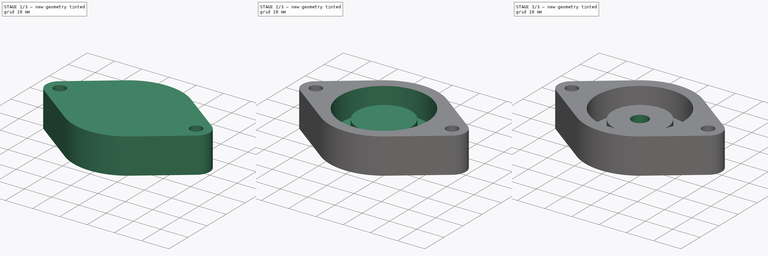
[diagram: build sequence overview — one tinted view per stage of 3, left to right]
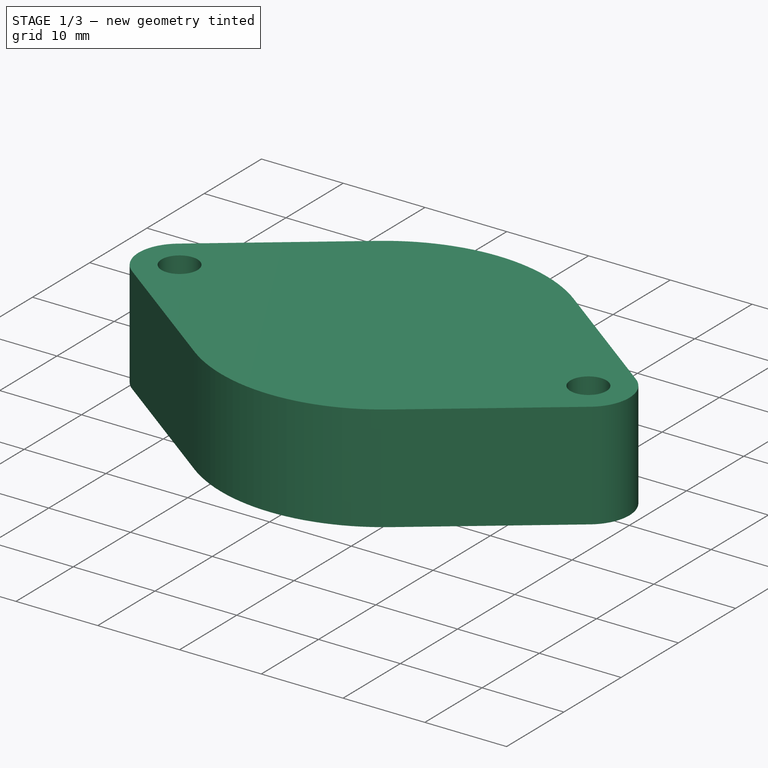
[diagram: stage 1 of 3 — iso view after this stage's code; geometry added in this stage tinted green]
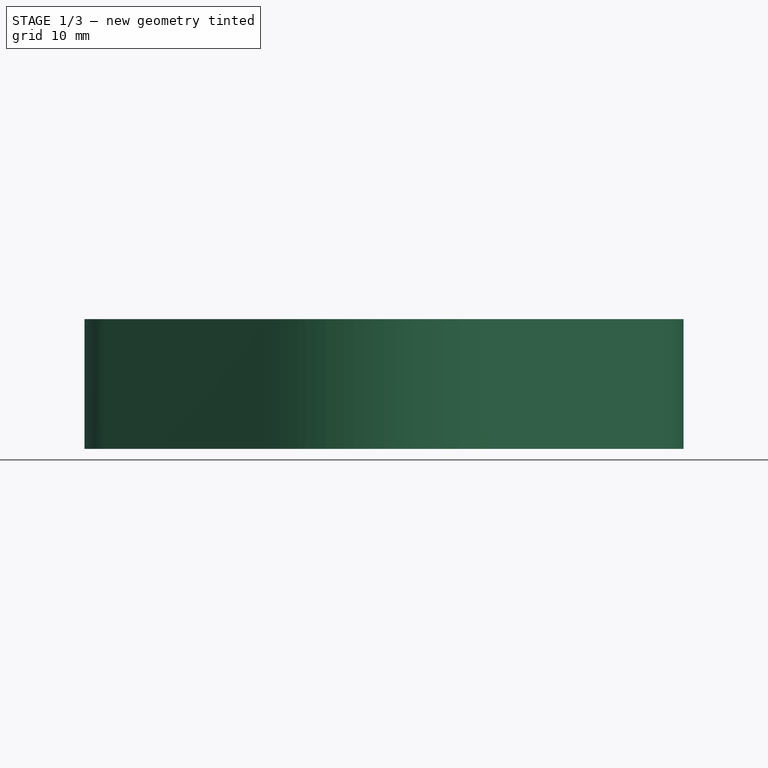
[diagram: stage 1 of 3 — front view after this stage's code; geometry added in this stage tinted green]
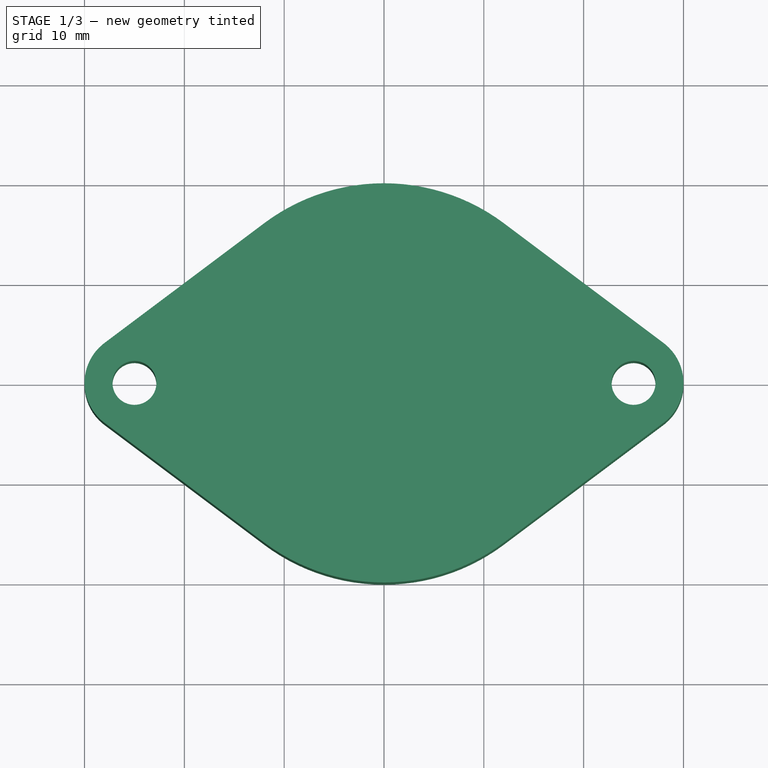
[diagram: stage 1 of 3 — top view after this stage's code; geometry added in this stage tinted green]
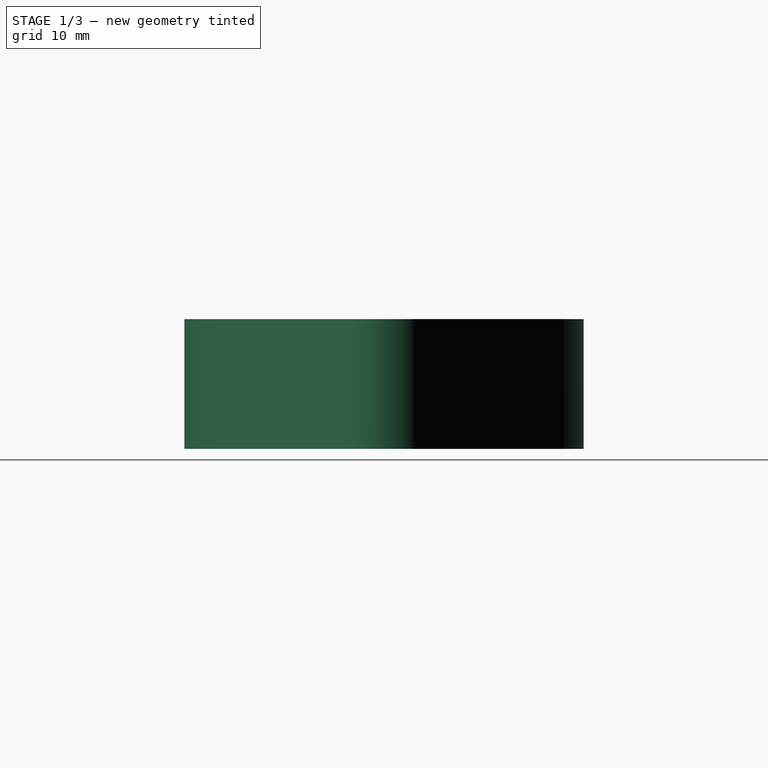
[diagram: stage 1 of 3 — right view after this stage's code; geometry added in this stage tinted green]
FCSTD DOCUMENT  (FreeCAD 0.16R5840 (Git))
Label: RubberFeetMount
License: CC-BY 3.0
LicenseURL: http://creativecommons.org/licenses/by/3.0/
objects: Sketcher::SketchObject×5, PartDesign::Pocket×3, PartDesign::Pad×2, App::DocumentObjectGroup×2, PartDesign::Chamfer×1
note: 16 computed .brp shape members not serialized (recipe doc carries the construction recipe); baked Part::Feature solids carry a one-line shape summary decoded from their .brp

FEATURE [Sketcher::SketchObject] Sketch  label="1_DrillAidBase_Sketch"
  sketch-geometry (10):
    g0: ArcOfCircle CenterX=-25 CenterY=0 CenterZ=0 NormalX=0 NormalY=0 NormalZ=1 Radius=5 StartAngle=2.2143 EndAngle=4.06889
    g1: ArcOfCircle CenterX=25 CenterY=0 CenterZ=0 NormalX=0 NormalY=0 NormalZ=1 Radius=5 StartAngle=5.35589 EndAngle=7.21048
    g2: ArcOfCircle CenterX=0 CenterY=0 CenterZ=0 NormalX=0 NormalY=0 NormalZ=1 Radius=20 StartAngle=0.927296 EndAngle=2.2143
    g3: ArcOfCircle CenterX=0 CenterY=0 CenterZ=0 NormalX=0 NormalY=0 NormalZ=1 Radius=20 StartAngle=4.06889 EndAngle=5.35589
    g4: LineSegment StartX=-28 StartY=4 StartZ=0 EndX=-12 EndY=16 EndZ=0
    g5: LineSegment StartX=-28 StartY=-4 StartZ=0 EndX=-12 EndY=-16 EndZ=0
    g6: LineSegment StartX=12 StartY=-16 StartZ=0 EndX=28 EndY=-4 EndZ=0
    g7: LineSegment StartX=12 StartY=16 StartZ=0 EndX=28 EndY=4 EndZ=0
    g8: Circle CenterX=-25 CenterY=0 CenterZ=0 NormalX=0 NormalY=0 NormalZ=1 Radius=2.2
    g9: Circle CenterX=25 CenterY=0 CenterZ=0 NormalX=0 NormalY=0 NormalZ=1 Radius=2.2
  constraints (30):
    c: PointOnObject(g0,g-1)
    c: PointOnObject(g1,g-1)
    c: Coincident(g2,g-1)
    c: Coincident(g3,g-1)
    c: Equal(g3,g2)
    c: Coincident(g4,g0)
    c: Coincident(g4,g2)
    c: Coincident(g5,g0)
    c: Coincident(g5,g3)
    c: Coincident(g6,g3)
    c: Coincident(g6,g1)
    c: Coincident(g7,g2)
    c: Coincident(g7,g1)
    c: Radius(g2) = 20
    c: Tangent(g4,g2)
    c: Tangent(g5,g3)
    c: Tangent(g3,g6)
    c: Tangent(g2,g7)
    c: Radius(g0) = 5
    c: Equal(g1,g0)
    c: DistanceX(g0,g1) = 50
    c: Tangent(g0,g4)
    c: Tangent(g0,g5)
    c: Tangent(g6,g1)
    c: Tangent(g7,g1)
    c: Symmetric(g2,g2,g-2)
    c: Coincident(g8,g0)
    c: Coincident(g9,g1)
    c: Radius(g9) = 2.2
    c: Equal(g9,g8)
FEATURE [PartDesign::Pad] Pad  label="1_DrillAidBase_Pad"
  Length = 13
  Length2 = 100
  Sketch = -> Sketch
  Type = 0
FEATURE [App::DocumentObjectGroup] Group001  label="DrillAid"
  Group = -> [Pad,Pocket,Pocket001,Chamfer,Pocket002]
FEATURE [Sketcher::SketchObject] Sketch004  label="1_FeetPadBase_Sketch"
  sketch-geometry (2):
    g0: Circle CenterX=0 CenterY=0 CenterZ=0 NormalX=0 NormalY=0 NormalZ=1 Radius=1.6
    g1: Circle CenterX=0 CenterY=0 CenterZ=0 NormalX=0 NormalY=0 NormalZ=1 Radius=16
  constraints (4):
    c: Coincident(g0,g-1)
    c: Coincident(g1,g-1)
    c: Radius(g0) = 1.6
    c: Radius(g1) = 16
FEATURE [PartDesign::Pad] Pad001  label="1_FeetPadBase_Pad"
  Length = 1
  Length2 = 100
  Sketch = -> Sketch004
  Type = 0
FEATURE [App::DocumentObjectGroup] Group002  label="Pad"
  Group = -> [Pad001]
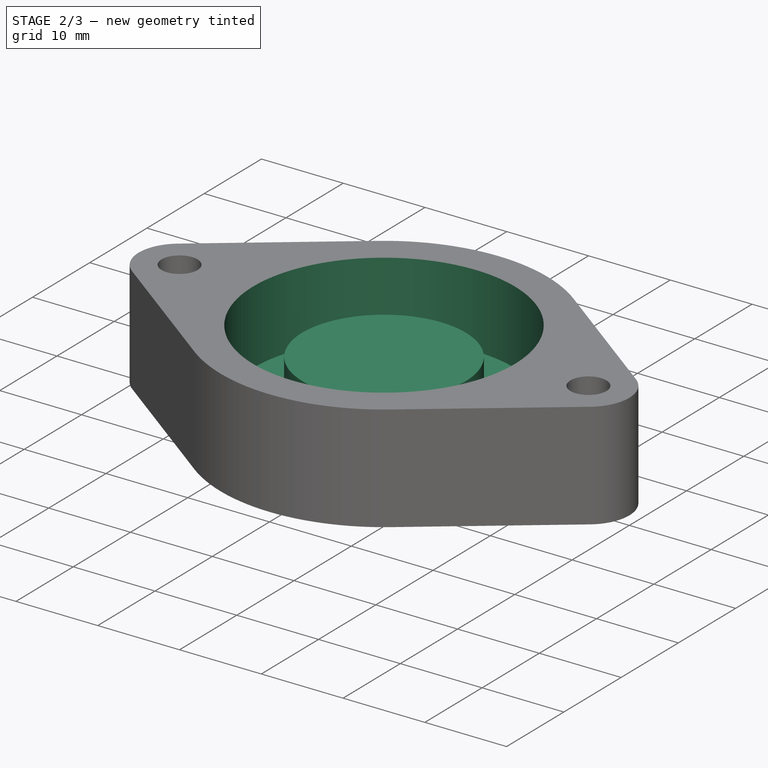
[diagram: stage 2 of 3 — iso view after this stage's code; geometry added in this stage tinted green]
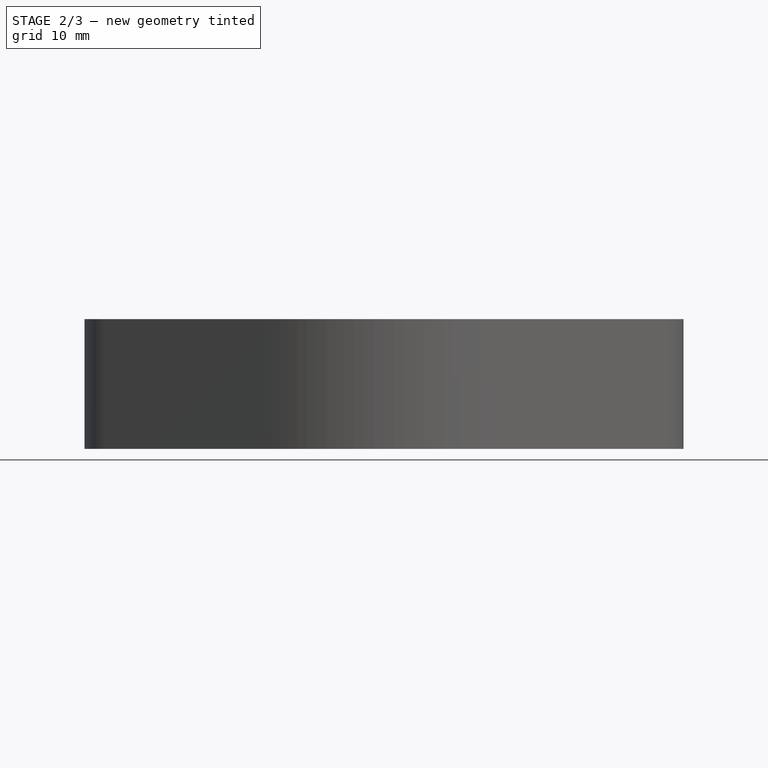
[diagram: stage 2 of 3 — front view after this stage's code; geometry added in this stage tinted green]
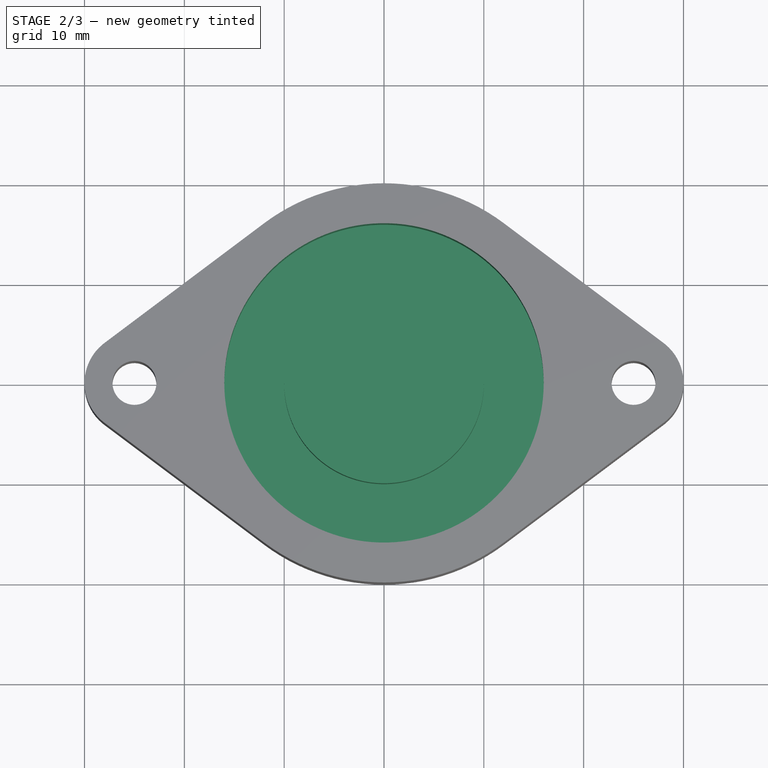
[diagram: stage 2 of 3 — top view after this stage's code; geometry added in this stage tinted green]
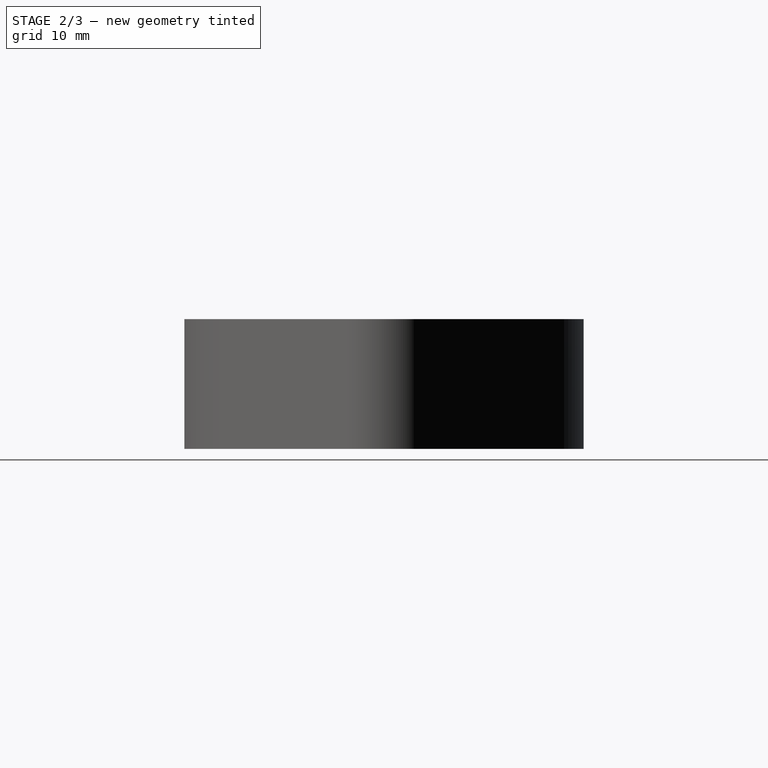
[diagram: stage 2 of 3 — right view after this stage's code; geometry added in this stage tinted green]
FEATURE [Sketcher::SketchObject] Sketch001  label="2_BodyHole_Sketch"
  Placement = pos=(0,0,13) rot=(0,0,1;0rad)
  Support = -> Pad [Face12]
  sketch-geometry (1):
    g0: Circle CenterX=0 CenterY=0 CenterZ=0 NormalX=0 NormalY=0 NormalZ=1 Radius=16
  constraints (2):
    c: Coincident(g0,g-1)
    c: Radius(g0) = 16
FEATURE [PartDesign::Pocket] Pocket  label="2_BodyHole_Pocket"
  Length = 3.5
  Sketch = -> Sketch001
  Type = 0
FEATURE [Sketcher::SketchObject] Sketch002  label="3_LipHole_Sketch"
  ExternalGeometry = -> [Pocket]
  Placement = pos=(0,0,9.5) rot=(0,0,1;0rad)
  Support = -> Pocket [Face14]
  sketch-geometry (2):
    g0: Circle CenterX=0 CenterY=0 CenterZ=0 NormalX=0 NormalY=0 NormalZ=1 Radius=16
    g1: Circle CenterX=0 CenterY=0 CenterZ=0 NormalX=0 NormalY=0 NormalZ=1 Radius=10
  constraints (4):
    c: Coincident(g0,g-1)
    c: Equal(g-3,g0)
    c: Coincident(g1,g-1)
    c: Radius(g1) = 10
FEATURE [PartDesign::Pocket] Pocket001  label="3_LipHole_Pocket"
  Length = 5.5
  Sketch = -> Sketch002
  Type = 0
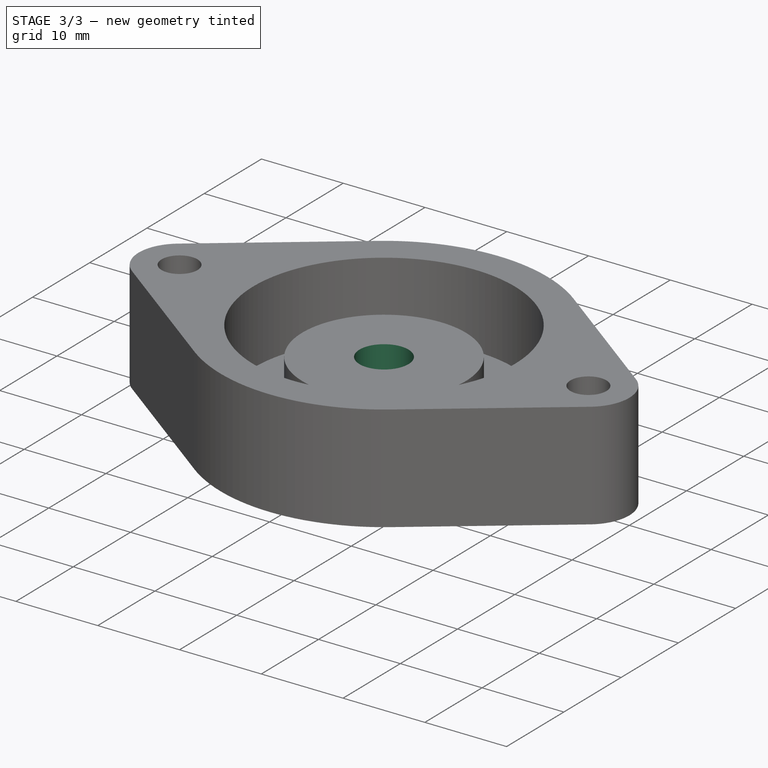
[diagram: stage 3 of 3 — iso view after this stage's code; geometry added in this stage tinted green]
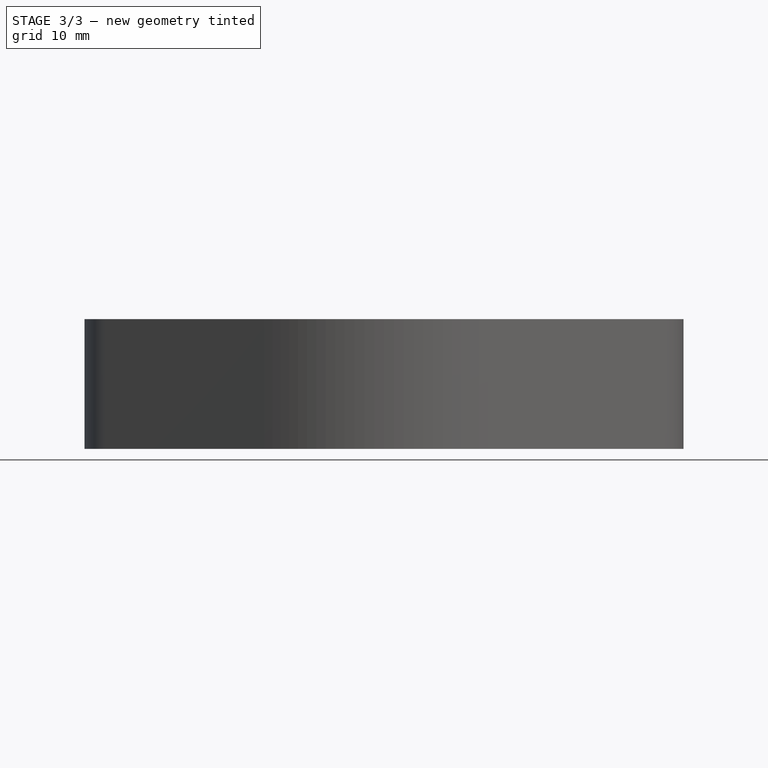
[diagram: stage 3 of 3 — front view after this stage's code; geometry added in this stage tinted green]
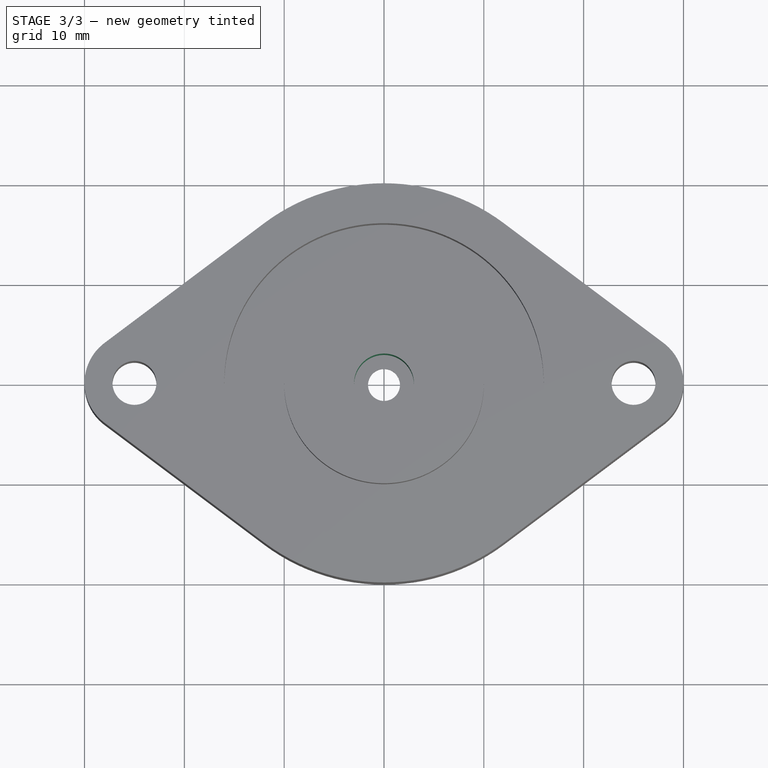
[diagram: stage 3 of 3 — top view after this stage's code; geometry added in this stage tinted green]
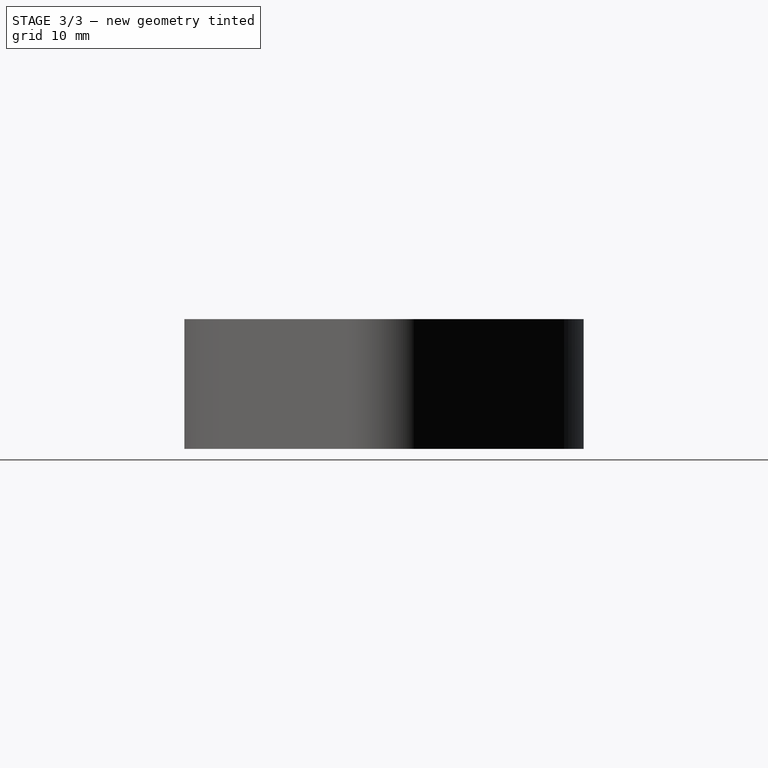
[diagram: stage 3 of 3 — right view after this stage's code; geometry added in this stage tinted green]
FEATURE [PartDesign::Chamfer] Chamfer  label="4_ScrewHead_Chamfer"
  Base = -> Pocket001 [Edge17,Edge16]
  Size = 1.8
FEATURE [Sketcher::SketchObject] Sketch003  label="5_DrillHole_Sketch"
  Placement = pos=(0,0,9.5) rot=(0,0,1;0rad)
  Support = -> Chamfer [Face19]
  sketch-geometry (1):
    g0: Circle CenterX=0 CenterY=0 CenterZ=0 NormalX=0 NormalY=0 NormalZ=1 Radius=3
  constraints (1):
    c: Radius(g0) = 3
FEATURE [PartDesign::Pocket] Pocket002  label="5_DrillHole_Pocket"
  Length = 5
  Sketch = -> Sketch003
  Type = 1
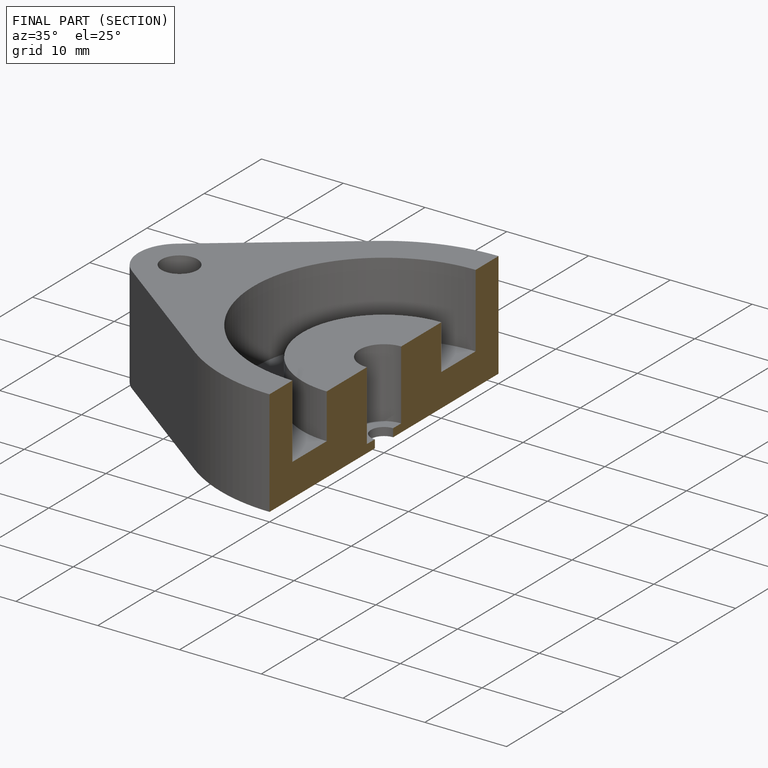
[diagram: finished part — half-section view (interior)]
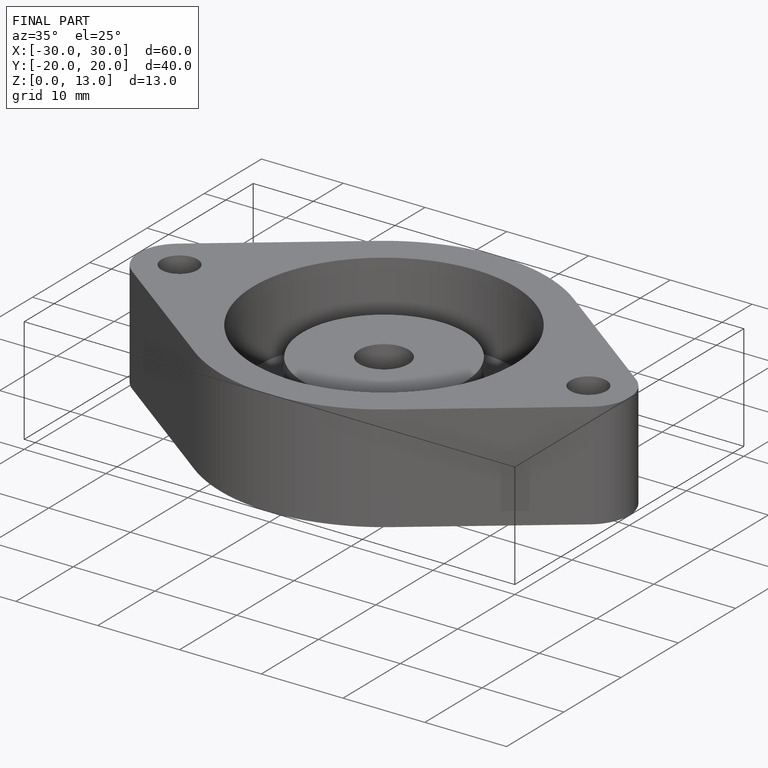
[diagram: finished part — iso view with bounding-box wireframe]
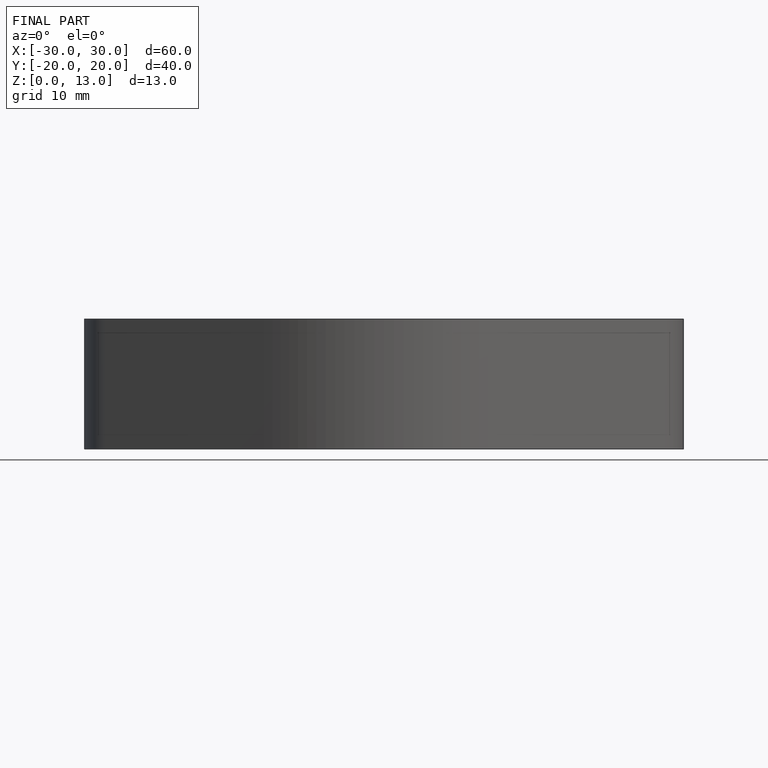
[diagram: finished part — front view with bounding-box wireframe]
